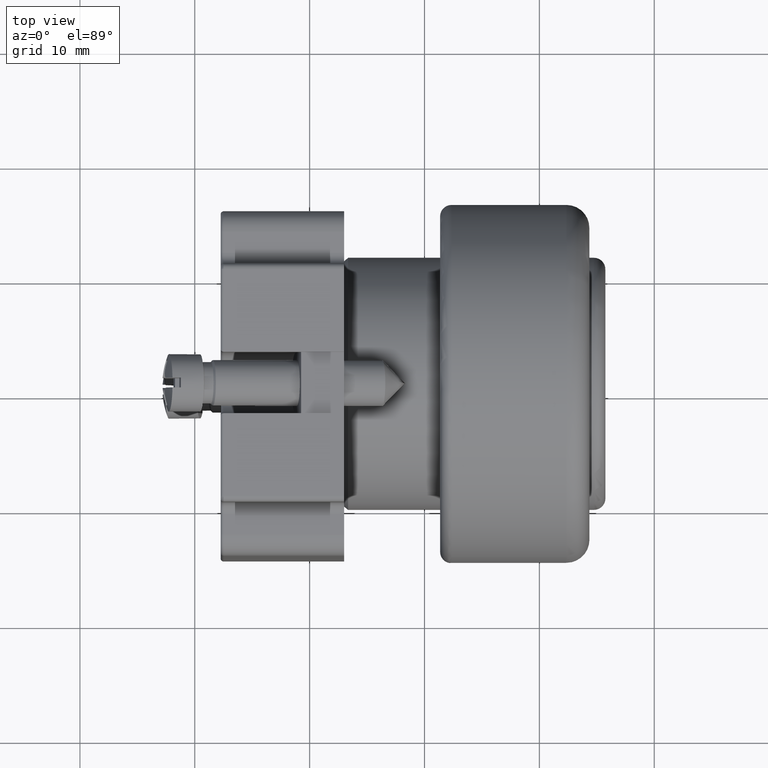
[diagram: clean part render]
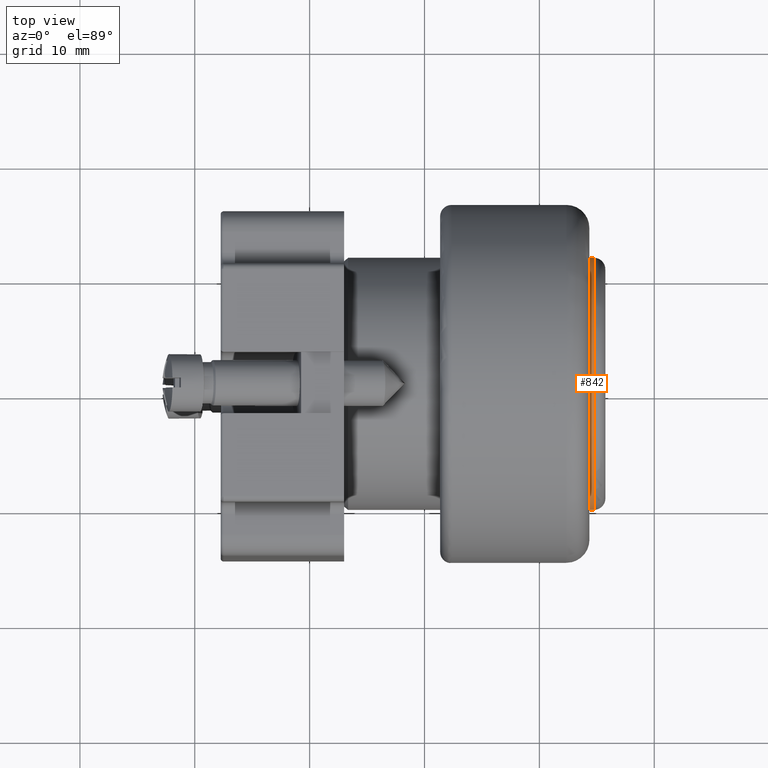
[diagram: same view with one face highlighted and labeled with its STEP entity id]
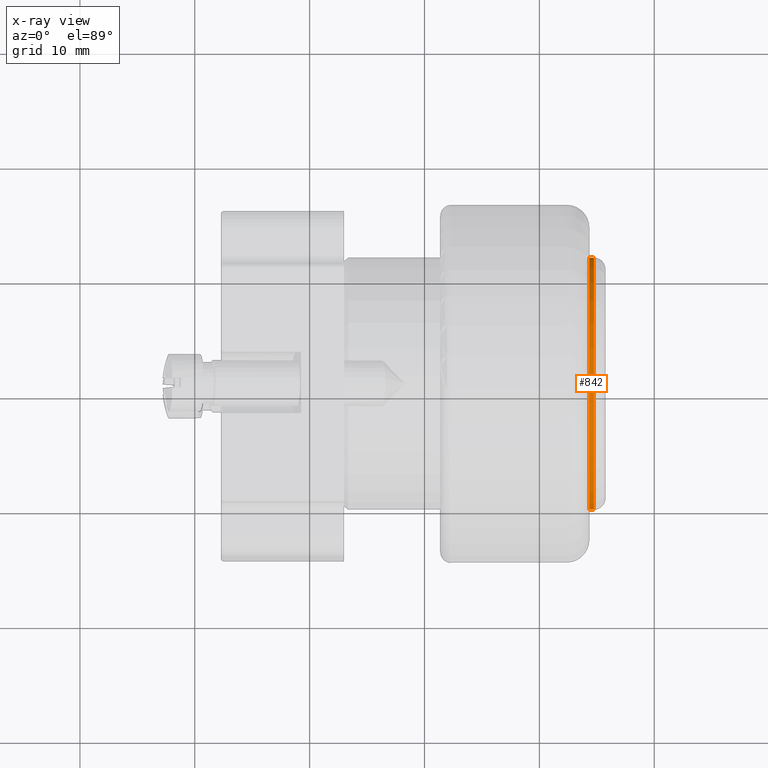
[diagram: x-ray of the same camera — body ghosted, the highlighted face saturated]
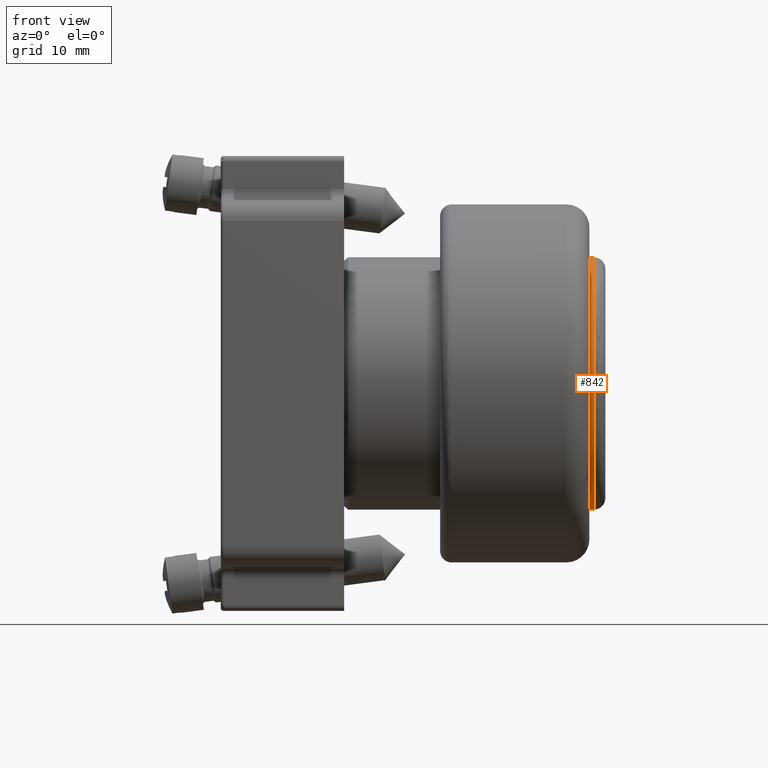
[diagram: same view with one face highlighted and labeled with its STEP entity id]
A machine part, top view. The second image highlights one B-rep face of the part: STEP entity #842.
The next image is the same camera in x-ray: the body ghosted, the highlighted face saturated — about 0% of this face is hidden behind the body in this view.
A second angle (front view) of the same face is appended — the face is thin or edge-on in the first view.
In plain terms, the highlighted cylindrical surface (bore or boss wall) has radius 11 mm, axis along (1, 0, 0).
Its self-contained STEP definition (entity closure, byte-faithful):
#811=CARTESIAN_POINT('',(4.355444339828559,11.920334286870929,0.0));
#812=VERTEX_POINT('',#811);
#813=CARTESIAN_POINT('',(4.355444339828560,0.920334286870927,0.0));
#814=DIRECTION('',(1.0,0.0,0.0));
#815=DIRECTION('',(0.0,1.0,0.0));
#816=AXIS2_PLACEMENT_3D('',#813,#814,#815);
#817=CIRCLE('',#816,11.0);
#818=EDGE_CURVE('',#812,#812,#817,.T.);
#823=CARTESIAN_POINT('',(4.551965296952833,0.920334286870927,0.0));
#824=DIRECTION('',(1.0,0.0,0.0));
#825=DIRECTION('',(0.0,1.0,0.0));
#826=AXIS2_PLACEMENT_3D('',#823,#824,#825);
#827=CYLINDRICAL_SURFACE('',#826,11.0);
#828=CARTESIAN_POINT('',(4.748486254077104,11.920334286870926,0.0));
#829=VERTEX_POINT('',#828);
#830=CARTESIAN_POINT('',(4.748486254077104,0.920334286870927,0.0));
#831=DIRECTION('',(1.0,0.0,0.0));
#832=DIRECTION('',(0.0,1.0,0.0));
#833=AXIS2_PLACEMENT_3D('',#830,#831,#832);
#834=CIRCLE('',#833,10.999999999999998);
#835=EDGE_CURVE('',#829,#829,#834,.T.);
#836=ORIENTED_EDGE('',*,*,#835,.F.);
#837=EDGE_LOOP('',(#836));
#838=FACE_OUTER_BOUND('',#837,.T.);
#839=ORIENTED_EDGE('',*,*,#818,.T.);
#840=EDGE_LOOP('',(#839));
#841=FACE_BOUND('',#840,.T.);
#842=ADVANCED_FACE('',(#838,#841),#827,.T.);